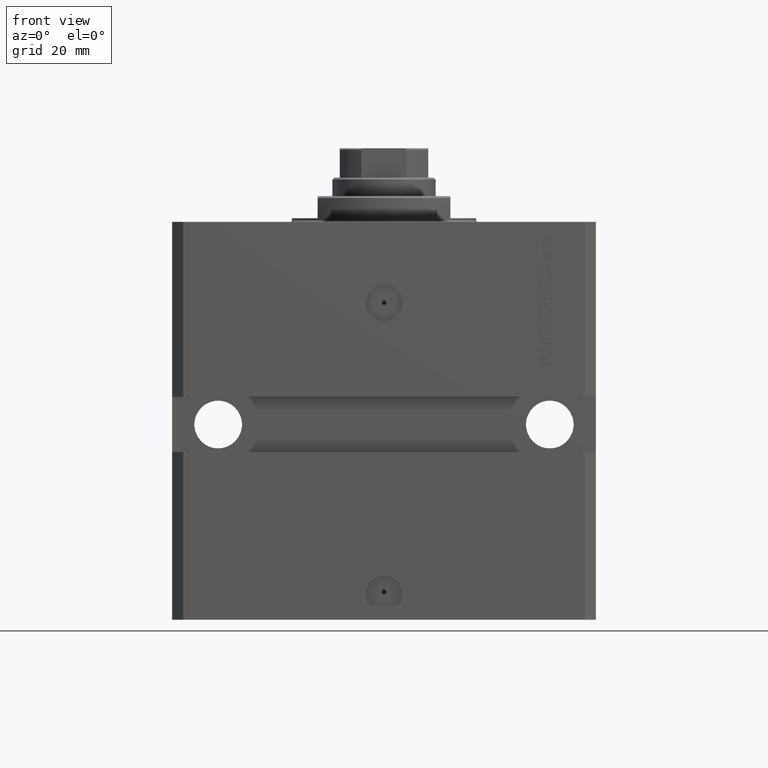
[diagram: clean part render]
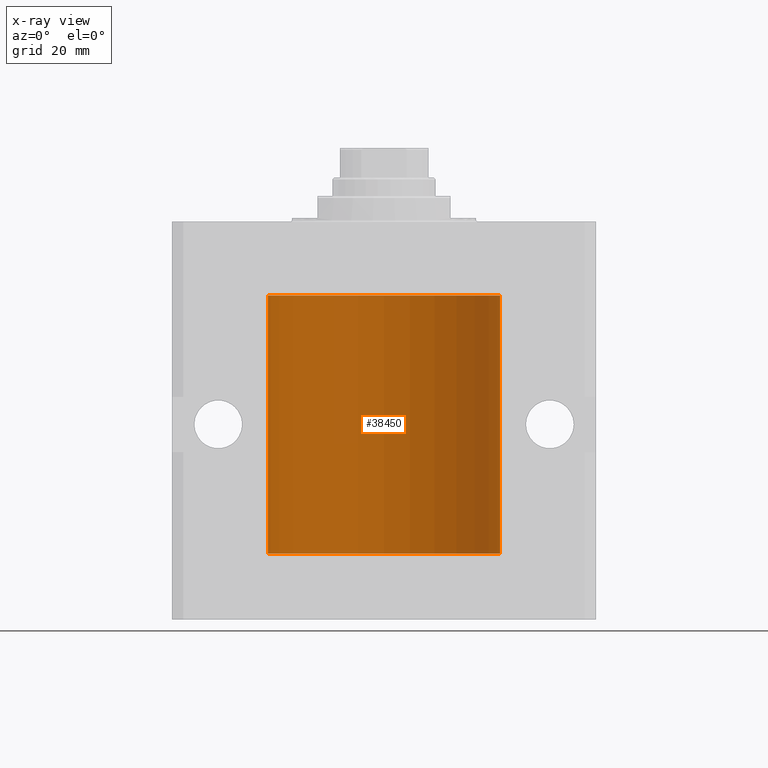
[diagram: x-ray — body ghosted, one internal face saturated and labeled with its STEP entity id]
A machine part, front view, then the same camera in x-ray: the body is ghosted and one INTERNAL B-rep face — a face not visible from any outside direction — is saturated and labeled: STEP entity #38450.
In plain terms, the highlighted cylindrical surface (partial cylindrical patch) has radius 31.5 mm, axis along (0, 0, 1).
Its self-contained STEP definition (entity closure, byte-faithful):
#560 = CARTESIAN_POINT ( 'NONE',  ( 31.49379899281745665, 0.6250000000082756024, -28.99999999999905853 ) ) ;
#569 = ORIENTED_EDGE ( 'NONE', *, *, #31663, .T. ) ;
#876 = CARTESIAN_POINT ( 'NONE',  ( 31.49526225382467359, 0.5586305680866376910, -28.67476160622149806 ) ) ;
#1086 = CARTESIAN_POINT ( 'NONE',  ( -31.49966591610108679, 0.1636376958180631447, -28.39126189995838700 ) ) ;
#1326 = CARTESIAN_POINT ( 'NONE',  ( -31.50000000000006395, 3.480980906124966778E-13, -29.62500000000323297 ) ) ;
#2475 = VECTOR ( 'NONE', #7525, 1000.000000000000000 ) ;
#3145 = CARTESIAN_POINT ( 'NONE',  ( 31.49851501686590893, 0.3150934959385818801, -87.54594721883859165 ) ) ;
#3390 = CARTESIAN_POINT ( 'NONE',  ( 31.49379899281745665, 0.6250000000082825968, -86.99999999999904787 ) ) ;
#3581 = ORIENTED_EDGE ( 'NONE', *, *, #9708, .F. ) ;
#3798 = DIRECTION ( 'NONE',  ( -0.000000000000000000, -0.000000000000000000, 1.000000000000000000 ) ) ;
#4118 = AXIS2_PLACEMENT_3D ( 'NONE', #48184, #44209, #21603 ) ;
#4755 = CARTESIAN_POINT ( 'NONE',  ( 31.49379899281760231, 0.6250000000003351763, -29.16310352862698352 ) ) ;
#4949 = EDGE_CURVE ( 'NONE', #45341, #22014, #20729, .T. ) ;
#5060 = ORIENTED_EDGE ( 'NONE', *, *, #28017, .T. ) ;
#5658 = DIRECTION ( 'NONE',  ( -0.000000000000000000, -0.000000000000000000, 1.000000000000000000 ) ) ;
#6499 = LINE ( 'NONE', #36847, #13474 ) ;
#6638 = ORIENTED_EDGE ( 'NONE', *, *, #11366, .T. ) ;
#7128 = CARTESIAN_POINT ( 'NONE',  ( 31.49527883250257432, 0.5574151849338155884, -87.32638608454756479 ) ) ;
#7236 = ORIENTED_EDGE ( 'NONE', *, *, #8586, .T. ) ;
#7375 = CARTESIAN_POINT ( 'NONE',  ( 31.49770674525946390, 0.3844410175904657834, -87.49948347834465778 ) ) ;
#7525 = DIRECTION ( 'NONE',  ( -0.000000000000000000, -0.000000000000000000, 1.000000000000000000 ) ) ;
#7544 = VERTEX_POINT ( 'NONE', #30546 ) ;
#8138 = CARTESIAN_POINT ( 'NONE',  ( 31.50000000000000000, 0.000000000000000000, -90.09999999999999432 ) ) ;
#8411 = VERTEX_POINT ( 'NONE', #21319 ) ;
#8586 = EDGE_CURVE ( 'NONE', #40374, #14921, #43259, .T. ) ;
#8637 = CARTESIAN_POINT ( 'NONE',  ( 31.50000000000000000, 0.000000000000000000, -90.09999999999999432 ) ) ;
#8904 = LINE ( 'NONE', #24113, #37024 ) ;
#9046 = CARTESIAN_POINT ( 'NONE',  ( -31.49379784581975983, 0.6250577973157599443, -29.16284184848848327 ) ) ;
#9665 = CIRCLE ( 'NONE', #37469, 31.50000000000000000 ) ;
#9708 = EDGE_CURVE ( 'NONE', #39810, #15405, #8904, .T. ) ;
#10486 = DIRECTION ( 'NONE',  ( -0.000000000000000000, -0.000000000000000000, 1.000000000000000000 ) ) ;
#10595 = CARTESIAN_POINT ( 'NONE',  ( -31.49379784581975272, 0.6250577973157668277, -87.16284184848845484 ) ) ;
#10643 = FACE_OUTER_BOUND ( 'NONE', #36178, .T. ) ;
#11291 = ORIENTED_EDGE ( 'NONE', *, *, #22394, .T. ) ;
#11366 = EDGE_CURVE ( 'NONE', #39810, #26196, #11811, .T. ) ;
#11811 = B_SPLINE_CURVE_WITH_KNOTS ( 'NONE', 3,
 ( #28463, #12786, #1086, #20511, #27738, #16772, #27980, #9046, #13263, #35420, #43606, #1326 ),
 .UNSPECIFIED., .F., .F.,
 ( 4, 2, 2, 2, 2, 4 ),
 ( 5.322949309211407119E-19, 0.0002442604562134704257, 0.0004885209124269403094, 0.0009770418248538795345, 0.001465562737280818977, 0.001954083649707758635 ),
 .UNSPECIFIED. ) ;
#12695 = CARTESIAN_POINT ( 'NONE',  ( -31.50000000000000000, 3.857637417314162689E-15, -90.09999999999999432 ) ) ;
#12786 = CARTESIAN_POINT ( 'NONE',  ( -31.50000000000000000, 0.08259258789479792529, -28.37500000000000355 ) ) ;
#13263 = CARTESIAN_POINT ( 'NONE',  ( -31.49526081842315151, 0.5587119163470772865, -29.32511513093050937 ) ) ;
#13286 = EDGE_CURVE ( 'NONE', #33986, #44537, #35013, .T. ) ;
#13474 = VECTOR ( 'NONE', #10486, 1000.000000000000000 ) ;
#13588 = ORIENTED_EDGE ( 'NONE', *, *, #4949, .F. ) ;
#14777 = VERTEX_POINT ( 'NONE', #16493 ) ;
#14921 = VERTEX_POINT ( 'NONE', #38808 ) ;
#15124 = CARTESIAN_POINT ( 'NONE',  ( 31.50000000000000000, -1.286676774952591455E-15, -29.62500000000000000 ) ) ;
#15405 = VERTEX_POINT ( 'NONE', #25965 ) ;
#16064 = CARTESIAN_POINT ( 'NONE',  ( 31.50000000000006395, 3.442404531757459093E-13, -28.37499999999677058 ) ) ;
#16215 = CARTESIAN_POINT ( 'NONE',  ( 31.50000000000006395, 3.442404755096224483E-13, -86.37499999999675993 ) ) ;
#16493 = CARTESIAN_POINT ( 'NONE',  ( -31.50000000000000000, 4.430764519502668374E-16, -86.37500000000001421 ) ) ;
#16626 = DIRECTION ( 'NONE',  ( 1.000000000000000000, 0.000000000000000000, 0.000000000000000000 ) ) ;
#16772 = CARTESIAN_POINT ( 'NONE',  ( -31.49528028230854559, 0.5573323339569596913, -28.67349008819320488 ) ) ;
#17234 = CARTESIAN_POINT ( 'NONE',  ( -31.50000000000000000, 3.857637417314162689E-15, -90.09999999999999432 ) ) ;
#17406 = EDGE_CURVE ( 'NONE', #14777, #26196, #33421, .T. ) ;
#17631 = B_SPLINE_CURVE_WITH_KNOTS ( 'NONE', 3,
 ( #36954, #29028, #37205, #33487, #32988, #47888, #21805, #10595, #44407, #25301, #48638, #21553 ),
 .UNSPECIFIED., .F., .F.,
 ( 4, 2, 2, 2, 2, 4 ),
 ( 3.063157642472452538E-18, 0.0002442604562134844661, 0.0004885209124269657881, 0.0009770418248538990501, 0.001465562737280832421, 0.001954083649707765574 ),
 .UNSPECIFIED. ) ;
#18074 = CARTESIAN_POINT ( 'NONE',  ( 31.49379899281745665, 0.6250000000082756024, -28.99999999999905853 ) ) ;
#18592 = CARTESIAN_POINT ( 'NONE',  ( 31.49379899281760942, 0.6250000000003405054, -87.16310352862700483 ) ) ;
#20511 = CARTESIAN_POINT ( 'NONE',  ( -31.49851563474691929, 0.3150284575672404608, -28.45401791159624949 ) ) ;
#20729 = LINE ( 'NONE', #17234, #43983 ) ;
#21319 = CARTESIAN_POINT ( 'NONE',  ( 31.50000000000000000, -2.492939093807799249E-15, -87.62500000000000000 ) ) ;
#21553 = CARTESIAN_POINT ( 'NONE',  ( -31.50000000000006395, 3.480981129463732167E-13, -87.62500000000324007 ) ) ;
#21603 = DIRECTION ( 'NONE',  ( 1.000000000000000000, 0.000000000000000000, 0.000000000000000000 ) ) ;
#21739 = CARTESIAN_POINT ( 'NONE',  ( 31.50000000000000000, 0.000000000000000000, -90.09999999999999432 ) ) ;
#21805 = CARTESIAN_POINT ( 'NONE',  ( -31.49380014137585704, 0.6249421240571518821, -86.83671479190292075 ) ) ;
#22014 = VERTEX_POINT ( 'NONE', #25289 ) ;
#22346 = CARTESIAN_POINT ( 'NONE',  ( 31.50000000000000000, 0.1631291455194407158, -86.37500000000012790 ) ) ;
#22394 = EDGE_CURVE ( 'NONE', #14921, #36116, #33666, .T. ) ;
#24071 = B_SPLINE_CURVE_WITH_KNOTS ( 'NONE', 3,
 ( #46768, #42310, #34862, #38822, #30883, #27416, #4755, #31375 ),
 .UNSPECIFIED., .F., .F.,
 ( 4, 2, 2, 4 ),
 ( 1.824539386392990385E-18, 0.0002443157997801608753, 0.0004886315995603199075, 0.0009772631991206452359 ),
 .UNSPECIFIED. ) ;
#24113 = CARTESIAN_POINT ( 'NONE',  ( -31.50000000000000000, 3.857637417314162689E-15, -90.09999999999999432 ) ) ;
#24484 = ORIENTED_EDGE ( 'NONE', *, *, #36919, .F. ) ;
#25289 = CARTESIAN_POINT ( 'NONE',  ( -31.50000000000006395, 3.480981129463732167E-13, -87.62500000000324007 ) ) ;
#25301 = CARTESIAN_POINT ( 'NONE',  ( -31.49853548231893541, 0.3253851488062160513, -87.55855470525683870 ) ) ;
#25965 = CARTESIAN_POINT ( 'NONE',  ( -31.50000000000000000, 3.857637417314162689E-15, -20.00000000000000355 ) ) ;
#26196 = VERTEX_POINT ( 'NONE', #35795 ) ;
#27001 = EDGE_CURVE ( 'NONE', #36116, #15405, #48334, .T. ) ;
#27067 = EDGE_CURVE ( 'NONE', #8411, #7544, #48127, .T. ) ;
#27321 = DIRECTION ( 'NONE',  ( -0.000000000000000000, -0.000000000000000000, 1.000000000000000000 ) ) ;
#27416 = CARTESIAN_POINT ( 'NONE',  ( 31.49527883250257432, 0.5574151849338060405, -29.32638608454755058 ) ) ;
#27738 = CARTESIAN_POINT ( 'NONE',  ( -31.49770767031179730, 0.3843648832734374854, -28.50046081259655395 ) ) ;
#27980 = CARTESIAN_POINT ( 'NONE',  ( -31.49380014137586414, 0.6249421240571522151, -28.83671479190292075 ) ) ;
#28017 = EDGE_CURVE ( 'NONE', #7544, #33986, #32640, .T. ) ;
#28463 = CARTESIAN_POINT ( 'NONE',  ( -31.50000000000000000, 6.762885151983182724E-15, -28.37500000000000355 ) ) ;
#29028 = CARTESIAN_POINT ( 'NONE',  ( -31.49999999999998579, 0.08259258789479440033, -86.37500000000001421 ) ) ;
#29044 = DIRECTION ( 'NONE',  ( 0.000000000000000000, 0.000000000000000000, 1.000000000000000000 ) ) ;
#29546 = CARTESIAN_POINT ( 'NONE',  ( 31.49379899281762363, 0.6249999999996236344, -86.83697036533061464 ) ) ;
#30546 = CARTESIAN_POINT ( 'NONE',  ( 31.49379899281745665, 0.6250000000082825968, -86.99999999999904787 ) ) ;
#30732 = DIRECTION ( 'NONE',  ( 1.000000000000000000, 0.000000000000000000, 0.000000000000000000 ) ) ;
#30743 = CARTESIAN_POINT ( 'NONE',  ( 31.50000000000000000, 0.1631291455194386619, -28.37500000000015277 ) ) ;
#30883 = CARTESIAN_POINT ( 'NONE',  ( 31.49770674525947101, 0.3844410175904570126, -29.49948347834465068 ) ) ;
#31375 = CARTESIAN_POINT ( 'NONE',  ( 31.49379899281745665, 0.6250000000082756024, -28.99999999999905853 ) ) ;
#31483 = CARTESIAN_POINT ( 'NONE',  ( 31.49853627283156499, 0.3253078817183363558, -28.44140989403645747 ) ) ;
#31663 = EDGE_CURVE ( 'NONE', #44537, #40374, #24071, .T. ) ;
#32640 = B_SPLINE_CURVE_WITH_KNOTS ( 'NONE', 3,
 ( #33763, #29546, #40957, #48911, #22346, #37484 ),
 .UNSPECIFIED., .F., .F.,
 ( 4, 2, 4 ),
 ( 0.0009772631991206588969, 0.001465673424414194563, 0.001954083649707730446 ),
 .UNSPECIFIED. ) ;
#32765 = EDGE_CURVE ( 'NONE', #38586, #8411, #6499, .T. ) ;
#32988 = CARTESIAN_POINT ( 'NONE',  ( -31.49770767031179730, 0.3843648832734375964, -86.50046081259654329 ) ) ;
#33421 = LINE ( 'NONE', #37877, #44286 ) ;
#33487 = CARTESIAN_POINT ( 'NONE',  ( -31.49851563474691218, 0.3150284575672408494, -86.45401791159623883 ) ) ;
#33666 = LINE ( 'NONE', #21739, #2475 ) ;
#33763 = CARTESIAN_POINT ( 'NONE',  ( 31.49379899281745665, 0.6250000000082825968, -86.99999999999904787 ) ) ;
#33986 = VERTEX_POINT ( 'NONE', #16215 ) ;
#34405 = ORIENTED_EDGE ( 'NONE', *, *, #39827, .T. ) ;
#34862 = CARTESIAN_POINT ( 'NONE',  ( 31.49966575203784558, 0.1636755595825546972, -29.60873030821186802 ) ) ;
#34867 = ORIENTED_EDGE ( 'NONE', *, *, #17406, .F. ) ;
#34973 = CARTESIAN_POINT ( 'NONE',  ( 31.49379899281762363, 0.6249999999996151967, -28.83697036533062885 ) ) ;
#35013 = LINE ( 'NONE', #8637, #45867 ) ;
#35420 = CARTESIAN_POINT ( 'NONE',  ( -31.49853548231893541, 0.3253851488062238784, -29.55855470525682094 ) ) ;
#35795 = CARTESIAN_POINT ( 'NONE',  ( -31.50000000000006395, 3.480980906124966778E-13, -29.62500000000323297 ) ) ;
#35878 = DIRECTION ( 'NONE',  ( -0.000000000000000000, -0.000000000000000000, 1.000000000000000000 ) ) ;
#36116 = VERTEX_POINT ( 'NONE', #39095 ) ;
#36178 = EDGE_LOOP ( 'NONE', ( #13588, #24484, #42426, #46822, #5060, #38880, #569, #7236, #11291, #36183, #3581, #6638, #34867, #34405 ) ) ;
#36183 = ORIENTED_EDGE ( 'NONE', *, *, #27001, .T. ) ;
#36486 = CARTESIAN_POINT ( 'NONE',  ( 31.50000000000000000, 0.08261130139621999935, -87.62499999999998579 ) ) ;
#36516 = CYLINDRICAL_SURFACE ( 'NONE', #4118, 31.50000000000000000 ) ;
#36701 = CARTESIAN_POINT ( 'NONE',  ( -31.50000000000000000, 6.762885151983182724E-15, -28.37500000000000355 ) ) ;
#36847 = CARTESIAN_POINT ( 'NONE',  ( 31.50000000000000000, 0.000000000000000000, -90.09999999999999432 ) ) ;
#36919 = EDGE_CURVE ( 'NONE', #38586, #45341, #9665, .T. ) ;
#36954 = CARTESIAN_POINT ( 'NONE',  ( -31.50000000000000000, 4.430764519502668374E-16, -86.37500000000001421 ) ) ;
#37024 = VECTOR ( 'NONE', #5658, 1000.000000000000000 ) ;
#37205 = CARTESIAN_POINT ( 'NONE',  ( -31.49966591610109390, 0.1636376958180633112, -86.39126189995839411 ) ) ;
#37221 = AXIS2_PLACEMENT_3D ( 'NONE', #46948, #29044, #16626 ) ;
#37469 = AXIS2_PLACEMENT_3D ( 'NONE', #40923, #38680, #30732 ) ;
#37474 = CARTESIAN_POINT ( 'NONE',  ( 31.49966575203785268, 0.1636755595825563903, -87.60873030821188934 ) ) ;
#37484 = CARTESIAN_POINT ( 'NONE',  ( 31.50000000000006395, 3.442404755096224483E-13, -86.37499999999675993 ) ) ;
#37877 = CARTESIAN_POINT ( 'NONE',  ( -31.50000000000000000, 3.857637417314162689E-15, -90.09999999999999432 ) ) ;
#38450 = ADVANCED_FACE ( 'NONE', ( #10643 ), #36516, .F. ) ;
#38586 = VERTEX_POINT ( 'NONE', #8138 ) ;
#38680 = DIRECTION ( 'NONE',  ( 0.000000000000000000, 0.000000000000000000, 1.000000000000000000 ) ) ;
#38808 = CARTESIAN_POINT ( 'NONE',  ( 31.50000000000006395, 3.442404531757459093E-13, -28.37499999999677058 ) ) ;
#38822 = CARTESIAN_POINT ( 'NONE',  ( 31.49851501686590893, 0.3150934959385772727, -29.54594721883858099 ) ) ;
#38880 = ORIENTED_EDGE ( 'NONE', *, *, #13286, .T. ) ;
#39095 = CARTESIAN_POINT ( 'NONE',  ( 31.50000000000000000, 0.000000000000000000, -20.00000000000000355 ) ) ;
#39810 = VERTEX_POINT ( 'NONE', #36701 ) ;
#39827 = EDGE_CURVE ( 'NONE', #14777, #22014, #17631, .T. ) ;
#40200 = CARTESIAN_POINT ( 'NONE',  ( 31.50000000000000000, -2.492939093807799249E-15, -87.62500000000000000 ) ) ;
#40374 = VERTEX_POINT ( 'NONE', #560 ) ;
#40923 = CARTESIAN_POINT ( 'NONE',  ( 0.000000000000000000, 0.000000000000000000, -90.09999999999999432 ) ) ;
#40957 = CARTESIAN_POINT ( 'NONE',  ( 31.49526225382467359, 0.5586305680866429091, -86.67476160622149450 ) ) ;
#42310 = CARTESIAN_POINT ( 'NONE',  ( 31.50000000000000711, 0.08261130139621915280, -29.62499999999999289 ) ) ;
#42426 = ORIENTED_EDGE ( 'NONE', *, *, #32765, .T. ) ;
#43259 = B_SPLINE_CURVE_WITH_KNOTS ( 'NONE', 3,
 ( #18074, #34973, #876, #31483, #30743, #16064 ),
 .UNSPECIFIED., .F., .F.,
 ( 4, 2, 4 ),
 ( 0.0009772631991206452359, 0.001465673424414174614, 0.001954083649707703992 ),
 .UNSPECIFIED. ) ;
#43606 = CARTESIAN_POINT ( 'NONE',  ( -31.50000000000000711, 0.1631661150515227865, -29.62499999999986500 ) ) ;
#43983 = VECTOR ( 'NONE', #35878, 1000.000000000000000 ) ;
#44209 = DIRECTION ( 'NONE',  ( -0.000000000000000000, -0.000000000000000000, 1.000000000000000000 ) ) ;
#44286 = VECTOR ( 'NONE', #3798, 1000.000000000000000 ) ;
#44407 = CARTESIAN_POINT ( 'NONE',  ( -31.49526081842315151, 0.5587119163470751770, -87.32511513093052713 ) ) ;
#44537 = VERTEX_POINT ( 'NONE', #15124 ) ;
#45341 = VERTEX_POINT ( 'NONE', #12695 ) ;
#45867 = VECTOR ( 'NONE', #27321, 1000.000000000000000 ) ;
#46768 = CARTESIAN_POINT ( 'NONE',  ( 31.50000000000000000, -1.286676774952591455E-15, -29.62500000000000000 ) ) ;
#46822 = ORIENTED_EDGE ( 'NONE', *, *, #27067, .T. ) ;
#46948 = CARTESIAN_POINT ( 'NONE',  ( 0.000000000000000000, 0.000000000000000000, -20.00000000000000355 ) ) ;
#47888 = CARTESIAN_POINT ( 'NONE',  ( -31.49528028230855270, 0.5573323339569608015, -86.67349008819320488 ) ) ;
#48127 = B_SPLINE_CURVE_WITH_KNOTS ( 'NONE', 3,
 ( #40200, #36486, #37474, #3145, #7375, #7128, #18592, #3390 ),
 .UNSPECIFIED., .F., .F.,
 ( 4, 2, 2, 4 ),
 ( 2.422664849601941982E-18, 0.0002443157997801665674, 0.0004886315995603306411, 0.0009772631991206588969 ),
 .UNSPECIFIED. ) ;
#48184 = CARTESIAN_POINT ( 'NONE',  ( 0.000000000000000000, 0.000000000000000000, -90.09999999999999432 ) ) ;
#48334 = CIRCLE ( 'NONE', #37221, 31.50000000000000000 ) ;
#48638 = CARTESIAN_POINT ( 'NONE',  ( -31.49999999999998579, 0.1631661150515254788, -87.62499999999984368 ) ) ;
#48911 = CARTESIAN_POINT ( 'NONE',  ( 31.49853627283156499, 0.3253078817183396310, -86.44140989403643971 ) ) ;